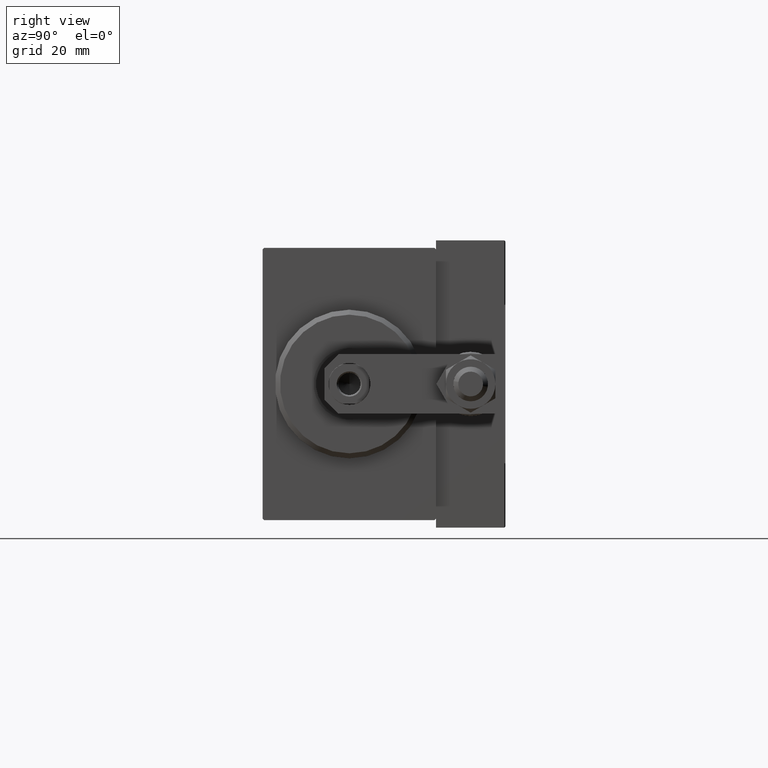
[diagram: clean part render]
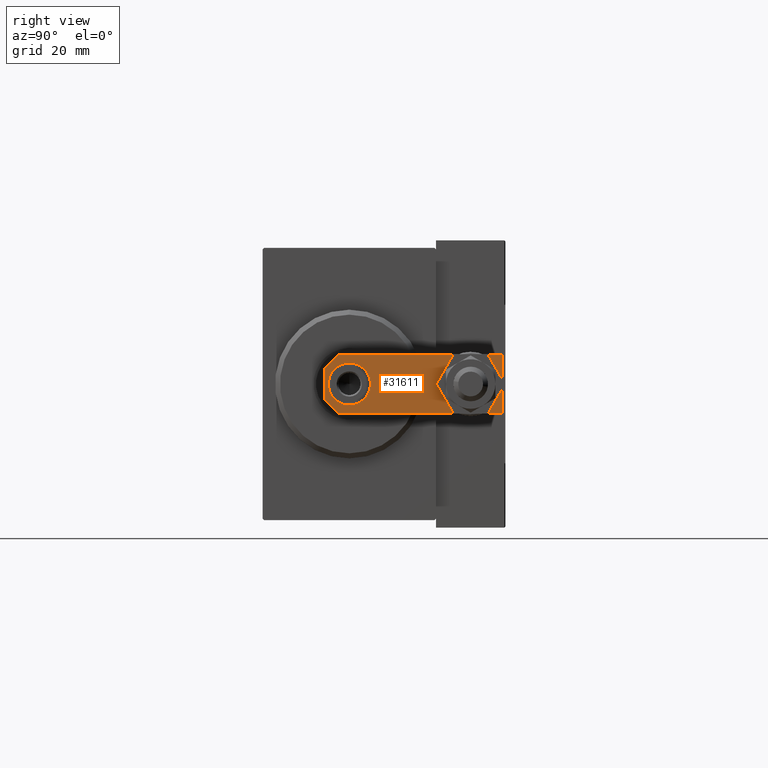
[diagram: same view with one face highlighted and labeled with its STEP entity id]
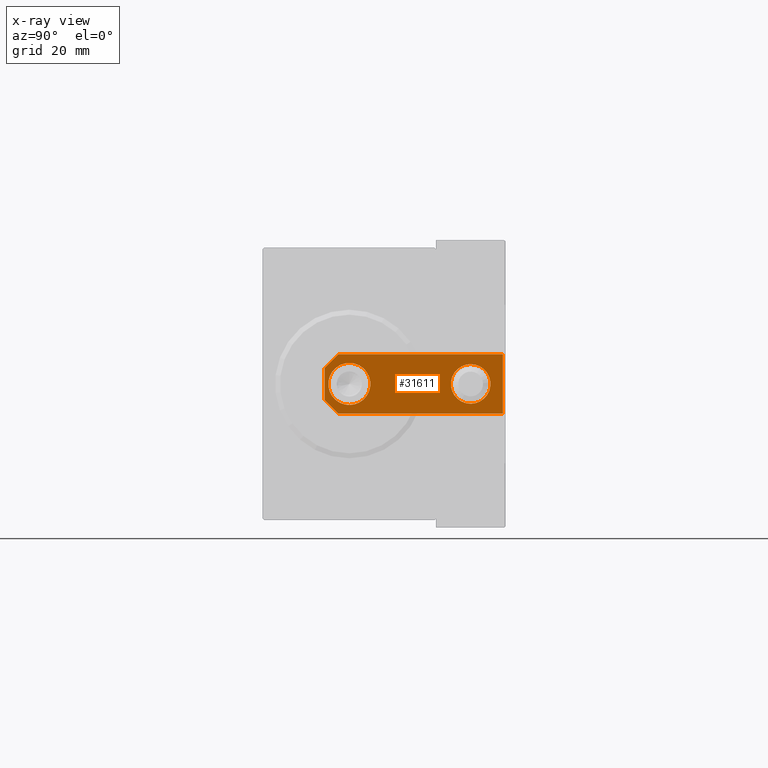
[diagram: x-ray of the same camera — body ghosted, the highlighted face saturated]
A machine part, right view. The second image highlights one B-rep face of the part: STEP entity #31611.
The next image is the same camera in x-ray: the body ghosted, the highlighted face saturated — about 0% of this face is hidden behind the body in this view.
In plain terms, the highlighted planar face has unit normal (1, 0, -0).
Its self-contained STEP definition (entity closure, byte-faithful):
#635 = VERTEX_POINT ( 'NONE', #20799 ) ;
#973 = EDGE_CURVE ( 'NONE', #44013, #38668, #44994, .T. ) ;
#2675 = EDGE_CURVE ( 'NONE', #6590, #14858, #31858, .T. ) ;
#3116 = DIRECTION ( 'NONE',  ( 0.000000000000000000, 0.000000000000000000, 1.000000000000000000 ) ) ;
#3161 = ORIENTED_EDGE ( 'NONE', *, *, #15149, .T. ) ;
#4543 = DIRECTION ( 'NONE',  ( -0.000000000000000000, 0.000000000000000000, 1.000000000000000000 ) ) ;
#4888 = DIRECTION ( 'NONE',  ( 1.000000000000000000, 0.000000000000000000, 0.000000000000000000 ) ) ;
#5812 = ORIENTED_EDGE ( 'NONE', *, *, #30157, .T. ) ;
#6131 = CARTESIAN_POINT ( 'NONE',  ( -4.250000000000000000, 5.000000000000000888, 5.000000000000000000 ) ) ;
#6590 = VERTEX_POINT ( 'NONE', #12799 ) ;
#6954 = VECTOR ( 'NONE', #30118, 1000.000000000000000 ) ;
#8090 = FACE_OUTER_BOUND ( 'NONE', #11646, .T. ) ;
#8288 = DIRECTION ( 'NONE',  ( -1.204669080539449344E-16, -1.000000000000000000, 0.000000000000000000 ) ) ;
#8676 = CARTESIAN_POINT ( 'NONE',  ( 1.925929944387235853E-31, 5.000000000000000888, 5.000000000000000000 ) ) ;
#9842 = DIRECTION ( 'NONE',  ( 0.000000000000000000, 0.000000000000000000, 1.000000000000000000 ) ) ;
#9934 = VECTOR ( 'NONE', #36447, 1000.000000000000000 ) ;
#9959 = ORIENTED_EDGE ( 'NONE', *, *, #2675, .T. ) ;
#10019 = ORIENTED_EDGE ( 'NONE', *, *, #973, .F. ) ;
#10362 = CARTESIAN_POINT ( 'NONE',  ( 5.999999999999996447, 2.799999999999997158, 5.000000000000000000 ) ) ;
#10438 = AXIS2_PLACEMENT_3D ( 'NONE', #13228, #20794, #12731 ) ;
#11016 = EDGE_LOOP ( 'NONE', ( #32535, #10019 ) ) ;
#11646 = EDGE_LOOP ( 'NONE', ( #23182, #9959, #27495, #5812, #3161, #14543 ) ) ;
#12052 = VERTEX_POINT ( 'NONE', #10362 ) ;
#12127 = CIRCLE ( 'NONE', #21770, 4.250000000000000000 ) ;
#12184 = DIRECTION ( 'NONE',  ( 1.000000000000000000, 0.000000000000000000, 0.000000000000000000 ) ) ;
#12337 = LINE ( 'NONE', #42912, #42493 ) ;
#12731 = DIRECTION ( 'NONE',  ( 1.000000000000000000, 0.000000000000000000, 0.000000000000000000 ) ) ;
#12799 = CARTESIAN_POINT ( 'NONE',  ( -5.999999999999995559, 2.800000000000010925, 5.000000000000000000 ) ) ;
#12910 = ORIENTED_EDGE ( 'NONE', *, *, #47493, .F. ) ;
#13228 = CARTESIAN_POINT ( 'NONE',  ( 0.000000000000000000, 29.50000000000000000, 5.000000000000000000 ) ) ;
#14013 = CARTESIAN_POINT ( 'NONE',  ( 4.000000000000000000, 29.50000000000000000, 5.000000000000000000 ) ) ;
#14502 = LINE ( 'NONE', #14748, #35360 ) ;
#14543 = ORIENTED_EDGE ( 'NONE', *, *, #28046, .T. ) ;
#14689 = LINE ( 'NONE', #34156, #6954 ) ;
#14748 = CARTESIAN_POINT ( 'NONE',  ( 1.599999999999989653, -1.599999999999995204, 5.000000000000000000 ) ) ;
#14858 = VERTEX_POINT ( 'NONE', #39530 ) ;
#15149 = EDGE_CURVE ( 'NONE', #12052, #635, #24807, .T. ) ;
#18777 = DIRECTION ( 'NONE',  ( 0.7071067811865487940, 0.7071067811865463515, -0.000000000000000000 ) ) ;
#19191 = AXIS2_PLACEMENT_3D ( 'NONE', #37740, #3116, #12184 ) ;
#19785 = CARTESIAN_POINT ( 'NONE',  ( 3.199999999999986855, 0.000000000000000000, 5.000000000000000000 ) ) ;
#20794 = DIRECTION ( 'NONE',  ( 0.000000000000000000, 0.000000000000000000, 1.000000000000000000 ) ) ;
#20799 = CARTESIAN_POINT ( 'NONE',  ( 6.000000000000008882, 36.00000000000000000, 5.000000000000000000 ) ) ;
#20942 = ORIENTED_EDGE ( 'NONE', *, *, #42343, .F. ) ;
#21770 = AXIS2_PLACEMENT_3D ( 'NONE', #8676, #24096, #4888 ) ;
#22100 = VERTEX_POINT ( 'NONE', #14013 ) ;
#23182 = ORIENTED_EDGE ( 'NONE', *, *, #26509, .T. ) ;
#23300 = DIRECTION ( 'NONE',  ( -1.000000000000000000, 0.000000000000000000, 0.000000000000000000 ) ) ;
#23713 = AXIS2_PLACEMENT_3D ( 'NONE', #39164, #4543, #35147 ) ;
#24096 = DIRECTION ( 'NONE',  ( 0.000000000000000000, 0.000000000000000000, 1.000000000000000000 ) ) ;
#24807 = LINE ( 'NONE', #40221, #9934 ) ;
#25256 = DIRECTION ( 'NONE',  ( 1.000000000000000000, 0.000000000000000000, 0.000000000000000000 ) ) ;
#25258 = EDGE_CURVE ( 'NONE', #14858, #41540, #14689, .T. ) ;
#26509 = EDGE_CURVE ( 'NONE', #34060, #6590, #12337, .T. ) ;
#27495 = ORIENTED_EDGE ( 'NONE', *, *, #25258, .T. ) ;
#27821 = DIRECTION ( 'NONE',  ( 0.7071067811865463515, -0.7071067811865487940, 0.000000000000000000 ) ) ;
#28046 = EDGE_CURVE ( 'NONE', #635, #34060, #46297, .T. ) ;
#30118 = DIRECTION ( 'NONE',  ( 1.000000000000000000, 0.000000000000000000, 0.000000000000000000 ) ) ;
#30157 = EDGE_CURVE ( 'NONE', #41540, #12052, #14502, .T. ) ;
#31611 = ADVANCED_FACE ( 'NONE', ( #42468, #8090, #42960 ), #46255, .T. ) ;
#31858 = LINE ( 'NONE', #47245, #45145 ) ;
#32028 = VECTOR ( 'NONE', #23300, 1000.000000000000000 ) ;
#32535 = ORIENTED_EDGE ( 'NONE', *, *, #49934, .F. ) ;
#33522 = EDGE_LOOP ( 'NONE', ( #20942, #12910 ) ) ;
#33573 = VERTEX_POINT ( 'NONE', #46819 ) ;
#34060 = VERTEX_POINT ( 'NONE', #34293 ) ;
#34156 = CARTESIAN_POINT ( 'NONE',  ( -5.999999999999995559, 0.000000000000000000, 5.000000000000000000 ) ) ;
#34293 = CARTESIAN_POINT ( 'NONE',  ( -5.999999999999991118, 36.00000000000000000, 5.000000000000000000 ) ) ;
#35147 = DIRECTION ( 'NONE',  ( 1.000000000000000000, 0.000000000000000000, 0.000000000000000000 ) ) ;
#35360 = VECTOR ( 'NONE', #18777, 1000.000000000000000 ) ;
#36447 = DIRECTION ( 'NONE',  ( 3.614007241618348278E-16, 1.000000000000000000, 0.000000000000000000 ) ) ;
#36640 = CARTESIAN_POINT ( 'NONE',  ( 0.000000000000000000, 29.50000000000000000, 5.000000000000000000 ) ) ;
#37740 = CARTESIAN_POINT ( 'NONE',  ( 1.925929944387235853E-31, 5.000000000000000888, 5.000000000000000000 ) ) ;
#37822 = CIRCLE ( 'NONE', #42648, 4.000000000000000000 ) ;
#38668 = VERTEX_POINT ( 'NONE', #6131 ) ;
#39164 = CARTESIAN_POINT ( 'NONE',  ( 0.000000000000000000, 0.000000000000000000, 5.000000000000000000 ) ) ;
#39463 = CIRCLE ( 'NONE', #10438, 4.000000000000000000 ) ;
#39530 = CARTESIAN_POINT ( 'NONE',  ( -3.199999999999995737, 0.000000000000000000, 5.000000000000000000 ) ) ;
#40221 = CARTESIAN_POINT ( 'NONE',  ( 5.999999999999995559, 0.000000000000000000, 5.000000000000000000 ) ) ;
#41540 = VERTEX_POINT ( 'NONE', #19785 ) ;
#42343 = EDGE_CURVE ( 'NONE', #33573, #22100, #37822, .T. ) ;
#42468 = FACE_BOUND ( 'NONE', #33522, .T. ) ;
#42493 = VECTOR ( 'NONE', #8288, 1000.000000000000000 ) ;
#42648 = AXIS2_PLACEMENT_3D ( 'NONE', #36640, #9842, #25256 ) ;
#42912 = CARTESIAN_POINT ( 'NONE',  ( -5.999999999999991118, 36.00000000000000000, 5.000000000000000000 ) ) ;
#42960 = FACE_BOUND ( 'NONE', #11016, .T. ) ;
#44013 = VERTEX_POINT ( 'NONE', #47116 ) ;
#44994 = CIRCLE ( 'NONE', #19191, 4.250000000000000000 ) ;
#45145 = VECTOR ( 'NONE', #27821, 1000.000000000000000 ) ;
#46255 = PLANE ( 'NONE',  #23713 ) ;
#46297 = LINE ( 'NONE', #49834, #32028 ) ;
#46819 = CARTESIAN_POINT ( 'NONE',  ( -4.000000000000000000, 29.50000000000000000, 5.000000000000000000 ) ) ;
#47116 = CARTESIAN_POINT ( 'NONE',  ( 4.250000000000000000, 5.000000000000001776, 5.000000000000000000 ) ) ;
#47245 = CARTESIAN_POINT ( 'NONE',  ( -1.600000000000003197, -1.599999999999997646, 5.000000000000000000 ) ) ;
#47493 = EDGE_CURVE ( 'NONE', #22100, #33573, #39463, .T. ) ;
#49834 = CARTESIAN_POINT ( 'NONE',  ( 6.000000000000008882, 36.00000000000000000, 5.000000000000000000 ) ) ;
#49934 = EDGE_CURVE ( 'NONE', #38668, #44013, #12127, .T. ) ;